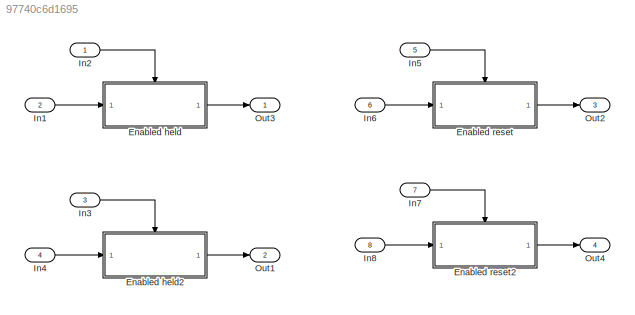
MODEL slx_97740c6d1695
KIND model
CONFIG AbsTol = auto
CONFIG EnableMultiTasking = on
CONFIG FixedStep = 1.000000
CONFIG MaxStep = auto
CONFIG MinStep = auto
CONFIG RelTol = 1e-3
CONFIG SampleTimeConstraint = Unconstrained
CONFIG Solver = FixedStepAuto
CONFIG SolverName = FixedStepAuto
CONFIG StartTime = 0.0
CONFIG StopTime = 10.0
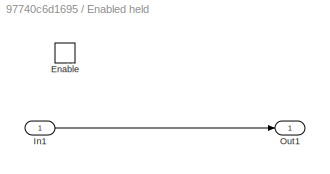
BLOCK [SubSystem] Enabled held
  Ports = [1, 1, 1]
  RequestExecContextInheritance = off
  TreatAsAtomicUnit = on
  Variant = off
BLOCK [EnablePort] Enabled held/Enable
  Ports = []
BLOCK [Inport] Enabled held/In1
  IconDisplay = Port number
BLOCK [Outport] Enabled held/Out1
  IconDisplay = Port number
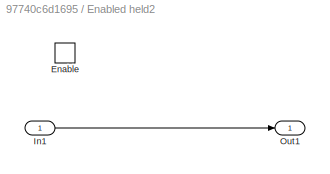
BLOCK [SubSystem] Enabled held2
  Ports = [1, 1, 1]
  RequestExecContextInheritance = off
  TreatAsAtomicUnit = on
  Variant = off
BLOCK [EnablePort] Enabled held2/Enable
  Ports = []
BLOCK [Inport] Enabled held2/In1
  IconDisplay = Port number
BLOCK [Outport] Enabled held2/Out1
  IconDisplay = Port number
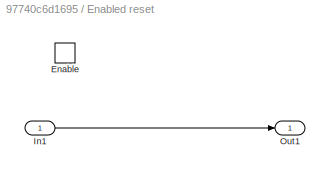
BLOCK [SubSystem] Enabled reset
  Ports = [1, 1, 1]
  RequestExecContextInheritance = off
  TreatAsAtomicUnit = on
  Variant = off
BLOCK [EnablePort] Enabled reset/Enable
  Ports = []
  StatesWhenEnabling = reset
BLOCK [Inport] Enabled reset/In1
  IconDisplay = Port number
BLOCK [Outport] Enabled reset/Out1
  IconDisplay = Port number
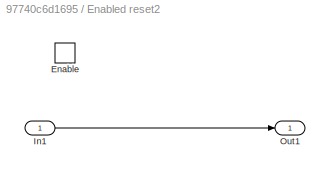
BLOCK [SubSystem] Enabled reset2
  Ports = [1, 1, 1]
  RequestExecContextInheritance = off
  TreatAsAtomicUnit = on
  Variant = off
BLOCK [EnablePort] Enabled reset2/Enable
  Ports = []
  StatesWhenEnabling = reset
  ZeroCross = off
BLOCK [Inport] Enabled reset2/In1
  IconDisplay = Port number
BLOCK [Outport] Enabled reset2/Out1
  IconDisplay = Port number
BLOCK [Inport] In1
  IconDisplay = Port number
  Port = 2
BLOCK [Inport] In2
  IconDisplay = Port number
  OutDataTypeStr = boolean
BLOCK [Inport] In3
  IconDisplay = Port number
  OutDataTypeStr = boolean
  Port = 3
BLOCK [Inport] In4
  IconDisplay = Port number
  Port = 4
  PortDimensions = 2
BLOCK [Inport] In5
  IconDisplay = Port number
  OutDataTypeStr = boolean
  Port = 5
BLOCK [Inport] In6
  IconDisplay = Port number
  Port = 6
BLOCK [Inport] In7
  IconDisplay = Port number
  OutDataTypeStr = int32
  Port = 7
BLOCK [Inport] In8
  IconDisplay = Port number
  Port = 8
  PortDimensions = 2
BLOCK [Outport] Out1
  IconDisplay = Port number
  Port = 2
BLOCK [Outport] Out2
  IconDisplay = Port number
  Port = 3
BLOCK [Outport] Out3
  IconDisplay = Port number
BLOCK [Outport] Out4
  IconDisplay = Port number
  Port = 4
LINE Enabled held/In1:1 -> Enabled held/Out1:1
LINE Enabled held2/In1:1 -> Enabled held2/Out1:1
LINE Enabled held2:1 -> Out1:1
LINE Enabled held:1 -> Out3:1
LINE Enabled reset/In1:1 -> Enabled reset/Out1:1
LINE Enabled reset2/In1:1 -> Enabled reset2/Out1:1
LINE Enabled reset2:1 -> Out4:1
LINE Enabled reset:1 -> Out2:1
LINE In1:1 -> Enabled held:1
LINE In2:1 -> Enabled held:enable
LINE In3:1 -> Enabled held2:enable
LINE In4:1 -> Enabled held2:1
LINE In5:1 -> Enabled reset:enable
LINE In6:1 -> Enabled reset:1
LINE In7:1 -> Enabled reset2:enable
LINE In8:1 -> Enabled reset2:1
